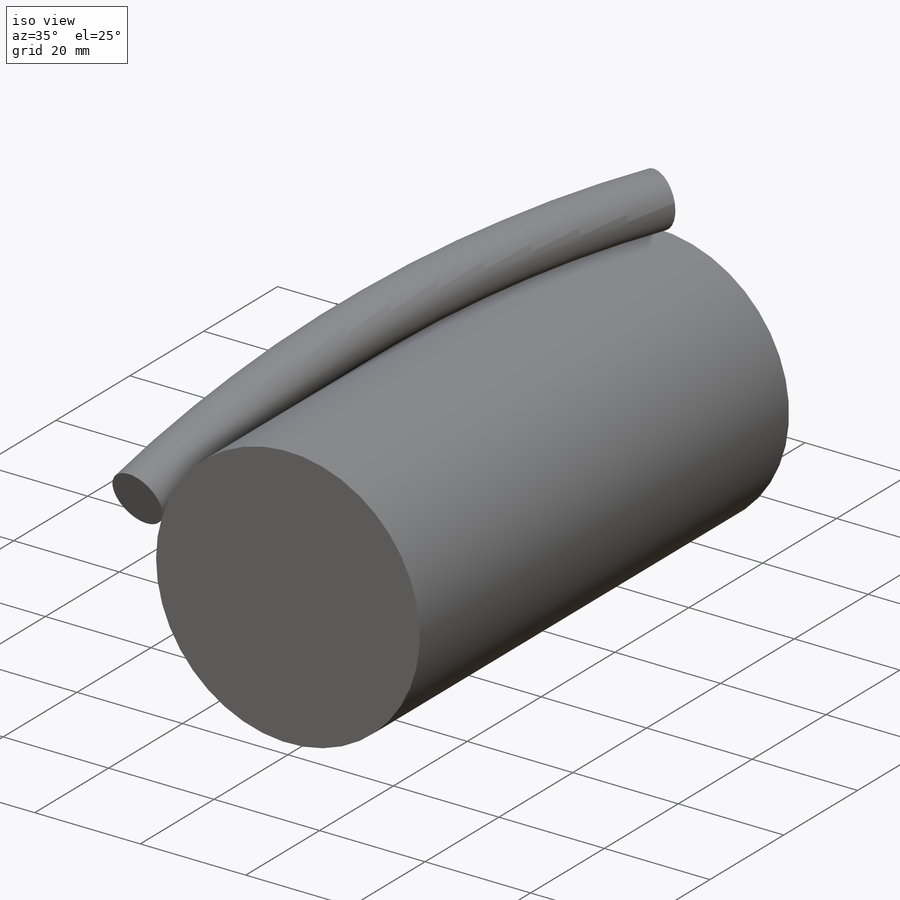
[diagram: iso view]
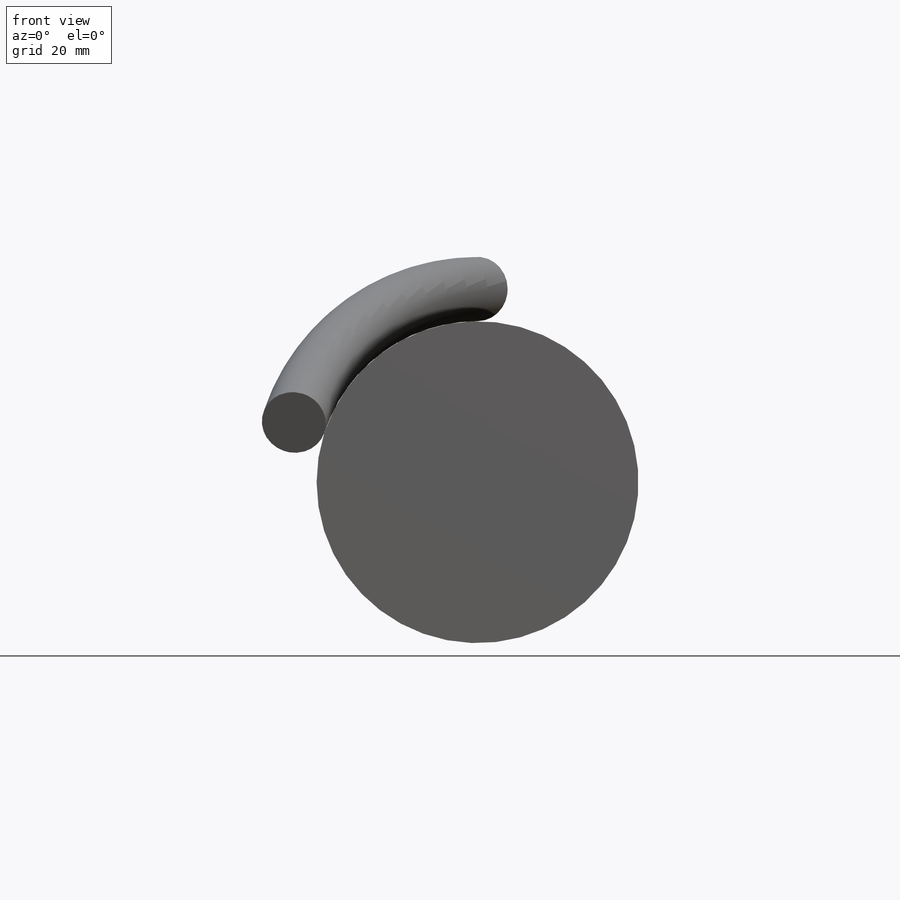
[diagram: front view]
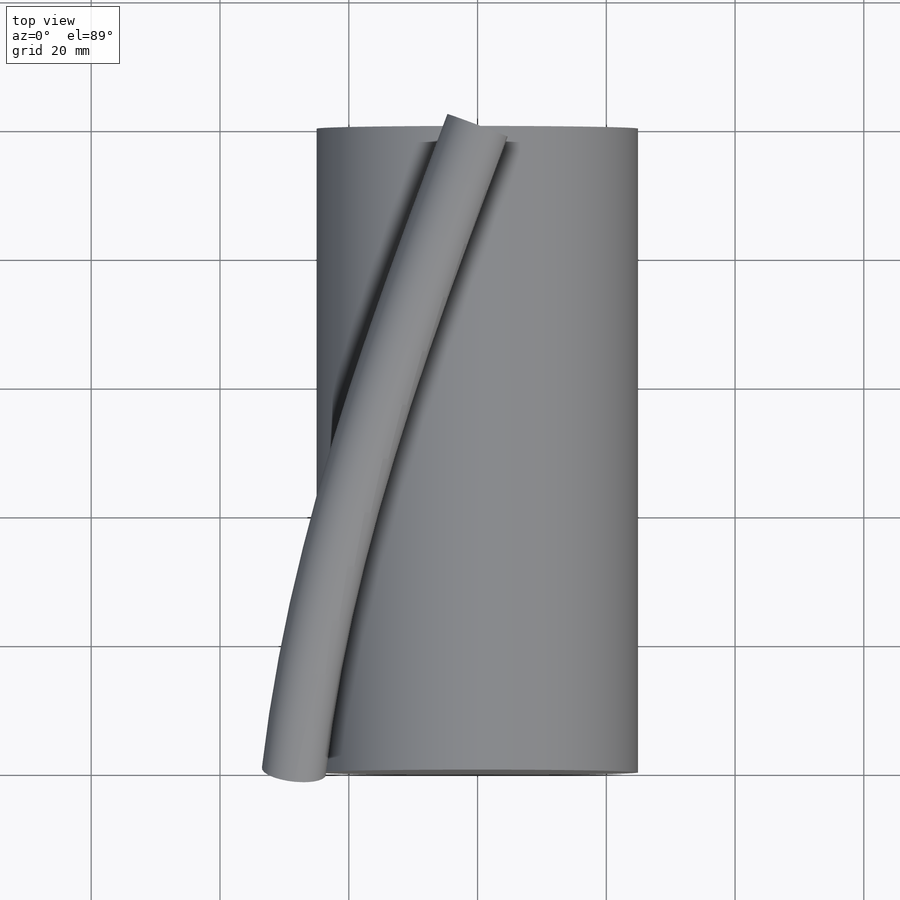
[diagram: top view]
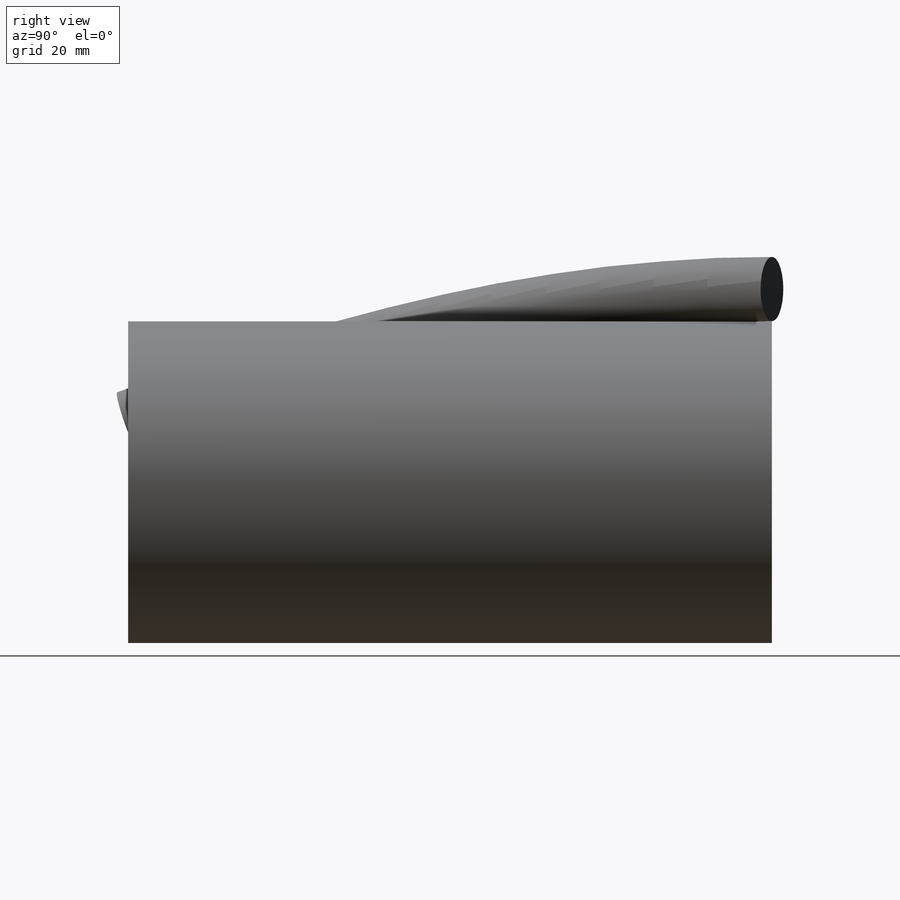
[diagram: right view]
SOLIDWORKS PART (.sldprt)
format: sldprt  version: not decoded by parser v0  size: 229,376 bytes
history: native  units: mm
features: plane x4, sketch x3, material x1, revolve x1, helix x1, sweep x1 (+10 scaffold rows collapsed)
feature tree (21):
  scaffold x10  (default folders/planes/origin — collapsed)
  material  "Material <nicht festgelegt>"
  plane  "Ebene vorne"
  plane  "Ebene oben"
  plane  "Ebene rechts"
  sketch  "Skizze1"  dims[D1=50.0mm D2=100.0mm]
  revolve  "Rotation1"  Angle=360deg
  sketch  "Skizze3"  dims[D1=5.0mm]
  helix  "Spirale/Helix1"  Pitch=100mm
  plane  "Ebene1"
  sketch  "Skizze4"  dims[D2=10.0mm D1=30.0mm]
  sweep  "Austragung1"
decode coverage: 5 of 6 modeling features carry decoded parameters
note: suppression state not decoded; provenance and decode notes live in map.json
